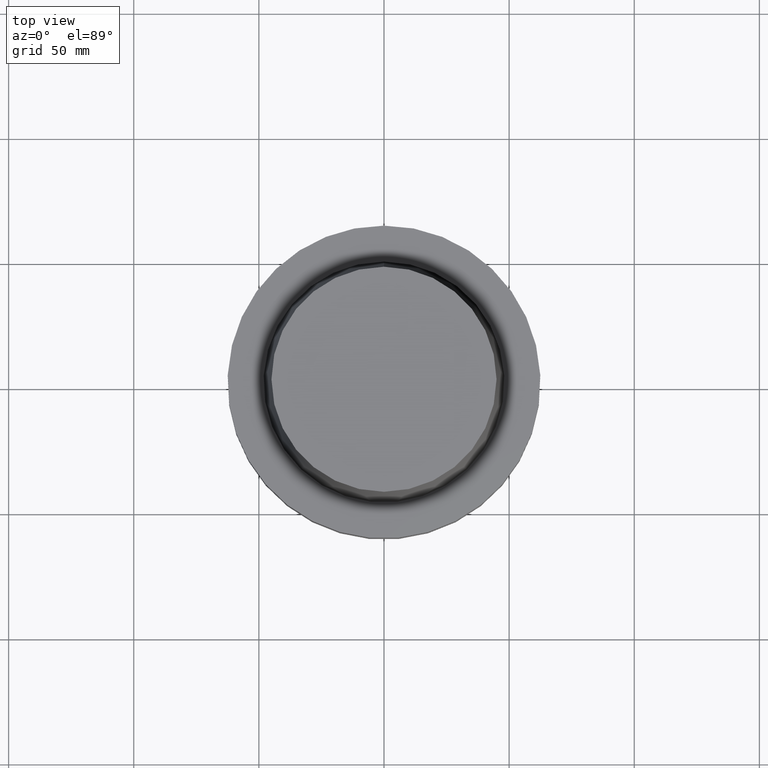
[diagram: clean part render]
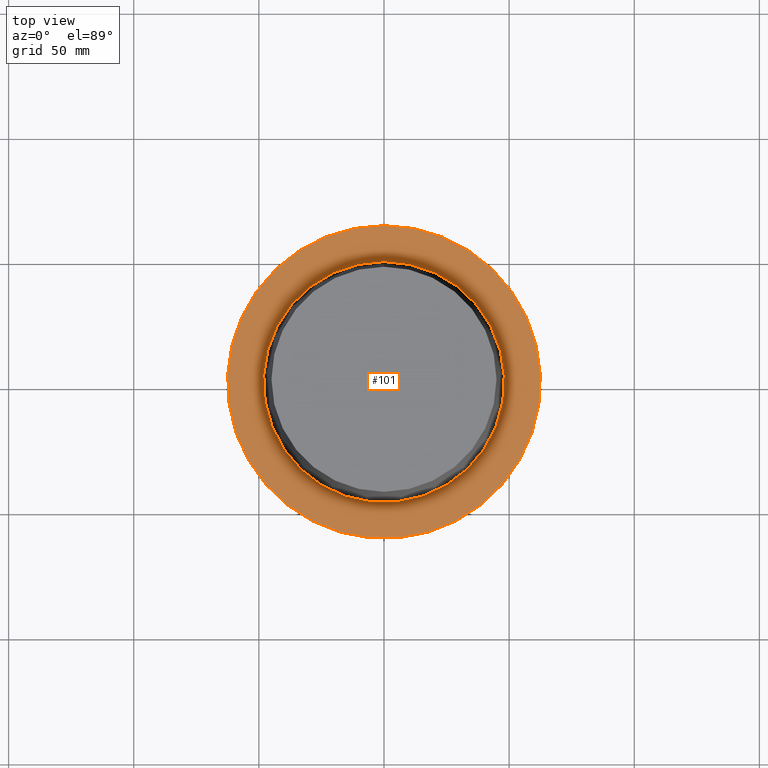
[diagram: same view with one face highlighted and labeled with its STEP entity id]
A machine part, top view. The second image highlights one B-rep face of the part: STEP entity #101.
In plain terms, the highlighted planar face has unit normal (-0, -0, 1).
Its self-contained STEP definition (entity closure, byte-faithful):
#98=EDGE_CURVE('Unnamed[1]',#223,#223,#224,.T.);
#101=ADVANCED_FACE('Unnamed[1]',(#227,#228),#229,.T.);
#119=EDGE_CURVE('Unnamed[1]',#255,#255,#256,.T.);
#223=VERTEX_POINT('',#379);
#224=CIRCLE('',#380,48.1342525050097);
#227=FACE_OUTER_BOUND('',#384,.T.);
#228=FACE_BOUND('',#385,.T.);
#229=PLANE('',#386);
#255=VERTEX_POINT('',#418);
#256=CIRCLE('',#419,62.5000000000002);
#379=CARTESIAN_POINT('',(3.88342032297484E-029,48.1342525050097,-6.38005254174039E-013));
#380=AXIS2_PLACEMENT_3D('',#540,#541,#542);
#384=EDGE_LOOP('',(#544));
#385=EDGE_LOOP('',(#545));
#386=AXIS2_PLACEMENT_3D('',#546,#547,#548);
#418=CARTESIAN_POINT('',(-5.58935713239973E-030,62.5000000000002,8.63540424946709E-014));
#419=AXIS2_PLACEMENT_3D('',#574,#575,#576);
#540=CARTESIAN_POINT('',(4.00275388022765E-029,8.00550776045529E-029,-6.53699316899292E-013));
#541=DIRECTION('',(6.12323399573677E-017,1.22464679914735E-016,-1.0));
#542=DIRECTION('',(-1.23259516440783E-032,1.0,1.22464679914735E-016));
#544=ORIENTED_EDGE('',*,*,#119,.F.);
#545=ORIENTED_EDGE('',*,*,#98,.T.);
#546=CARTESIAN_POINT('',(1.66224230486744E-029,55.317126252505,-2.75825605839684E-013));
#547=DIRECTION('',(-6.12323399573677E-017,-5.04226666187264E-014,1.0));
#548=DIRECTION('',(3.09232501668564E-030,-1.0,-5.04226666187264E-014));
#574=CARTESIAN_POINT('',(-5.22098332203606E-030,-1.04419666440721E-029,8.5265128291212E-014));
#575=DIRECTION('',(6.12323399573677E-017,1.22464679914735E-016,-1.0));
#576=DIRECTION('',(-1.23259516440783E-032,1.0,1.22464679914735E-016));